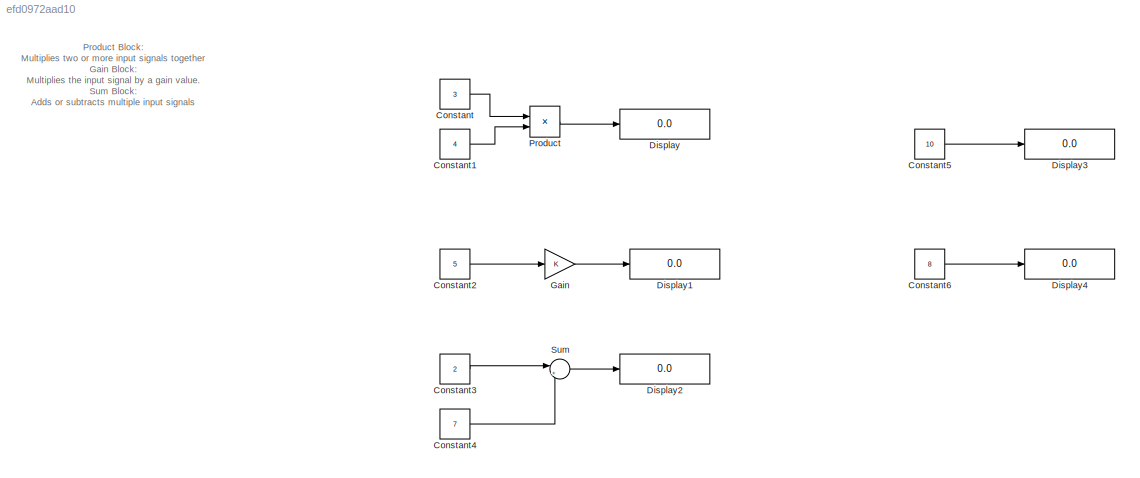
MODEL slx_efd0972aad10
KIND model
CONFIG AbsTol = auto
CONFIG EnableMultiTasking = off
CONFIG FixedStep = auto
CONFIG MaxStep = auto
CONFIG MinStep = auto
CONFIG RelTol = 1e-3
CONFIG SampleTimeConstraint = Unconstrained
CONFIG SolverName = VariableStepAuto
CONFIG StartTime = 0.0
CONFIG StopTime = 10.0
BLOCK [Constant] Constant
  Value = 3
BLOCK [Constant] Constant1
  Value = 4
BLOCK [Constant] Constant2
  Value = 5
BLOCK [Constant] Constant3
  Value = 2
BLOCK [Constant] Constant4
  Value = 7
BLOCK [Constant] Constant5
  Value = 10
BLOCK [Constant] Constant6
  Value = 8
BLOCK [Display] Display
  Decimation = 1
  Ports = [1]
BLOCK [Display] Display1
  Decimation = 1
  Ports = [1]
BLOCK [Display] Display2
  Decimation = 1
  Ports = [1]
BLOCK [Display] Display3
  Decimation = 1
  Ports = [1]
BLOCK [Display] Display4
  Decimation = 1
  Ports = [1]
BLOCK [Gain] Gain
BLOCK [Product] Product
  Ports = [2, 1]
BLOCK [Sum] Sum
  Inputs = |++
  Ports = [2, 1]
ANNOTATION (root): Product Block : Multiplies two or more input signals together Gain Block : Multiplies the input signal by a gain value. Sum Block : Adds or subtracts multiple input signals Constant Block : Provides a fixed value as input to the system. Display Block : Shows the value of the connected signal during simulation.
LINE Constant1:1 -> Product:2
LINE Constant2:1 -> Gain:1
LINE Constant3:1 -> Sum:1
LINE Constant4:1 -> Sum:2
LINE Constant5:1 -> Display3:1
LINE Constant6:1 -> Display4:1
LINE Constant:1 -> Product:1
LINE Gain:1 -> Display1:1
LINE Product:1 -> Display:1
LINE Sum:1 -> Display2:1
